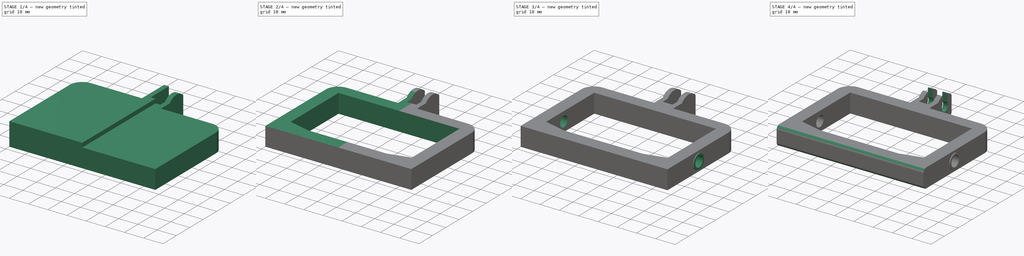
[diagram: build sequence overview — one tinted view per stage of 4, left to right]
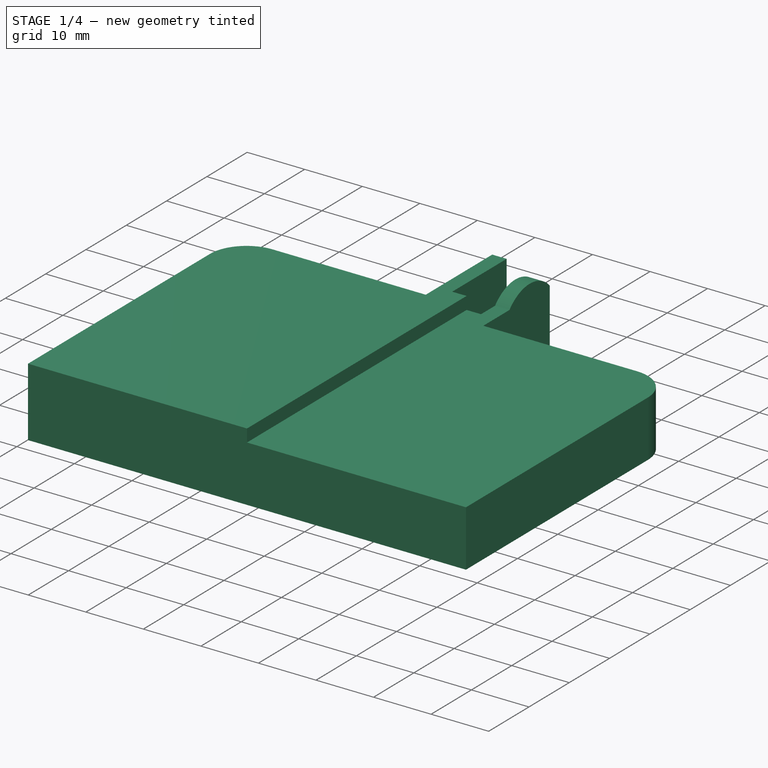
[diagram: stage 1 of 4 — iso view after this stage's code; geometry added in this stage tinted green]
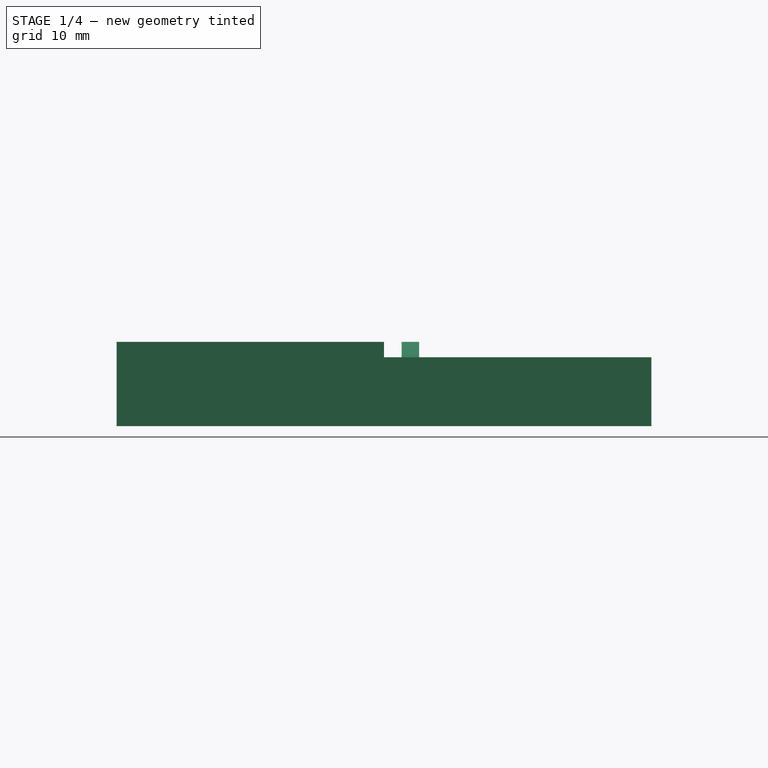
[diagram: stage 1 of 4 — front view after this stage's code; geometry added in this stage tinted green]
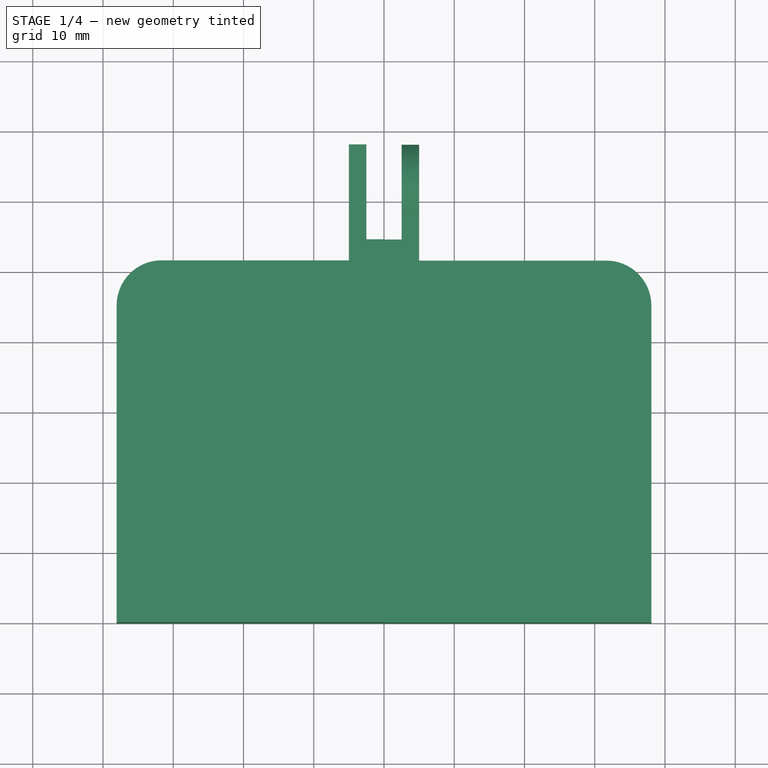
[diagram: stage 1 of 4 — top view after this stage's code; geometry added in this stage tinted green]
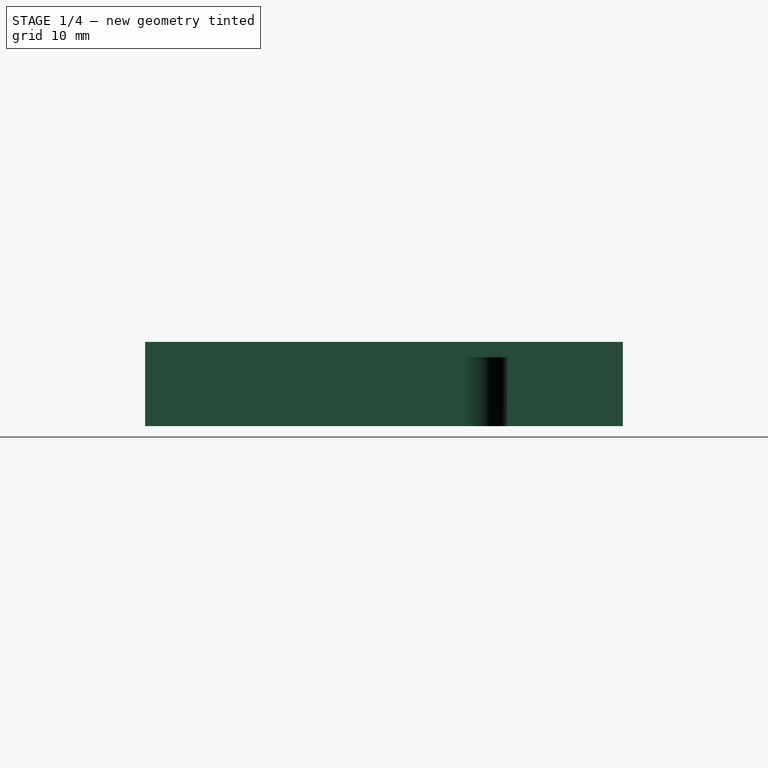
[diagram: stage 1 of 4 — right view after this stage's code; geometry added in this stage tinted green]
FCSTD DOCUMENT  (FreeCAD 0.18R4 (GitTag))
Label: styron
License: All rights reserved
LicenseURL: http://en.wikipedia.org/wiki/All_rights_reserved
objects: Sketcher::SketchObject×8, PartDesign::Pocket×6, PartDesign::Plane×5, PartDesign::Mirrored×4, PartDesign::Pad×2, Spreadsheet::Sheet×1, PartDesign::Body×1
note: 34 computed .brp shape members not serialized (recipe doc carries the construction recipe); baked Part::Feature solids carry a one-line shape summary decoded from their .brp

FEATURE [Spreadsheet::Sheet] Spreadsheet
  cells = A1=TotalWidth; B1(TotalWidth)==76.09999999999999mm; A2=BodyHeight; B2(BodyHeight)==51.5mm; A3=HeadHeight; B3(HeadHeight)==16.5mm; A4=NeckHeight; B4(NeckHeight)==HeadHeight - 10mm; A5=TotalHeight; B5(TotalHeight)==BodyHeight + HeadHeight; A6=InnerHeadHeight; B6(InnerHeadHeight)==13.5mm; A7=HeadWidth; B7(HeadWidth)==10mm; A8=InnerHeadWidth; B8(InnerHeadWidth)==HeadWidth / 2; A9=BodyArcRadius; B9(BodyArcRadius)==6.4mm; A10=TotalDepth; B10(TotalDepth)==12mm; A11=BodyDepth; B11(BodyDepth)==9.800000000000001mm; A12=HoleDiameter; B12(HoleDiameter)==5.5mm; A13=BumpDiameter; B13(BumpDiameter)==7.5mm; A14=BumpDistanceY; B14(BumpDistanceY)==20mm + HoleDiameter / 2; A15=BumpWidth; B15(BumpWidth)==0.5mm; A16=InnerProfileLongWidth; B16(InnerProfileLongWidth)==63.1mm; A17=InnerProfileShortWidth; B17(InnerProfileShortWidth)==40.7mm; A18=InnerProfileLongSideHeight; B18(InnerProfileLongSideHeight)==38.4mm; A19=InnerProfileShortSideHeight; B19(InnerProfileShortSideHeight)==35.6mm; A20=InnerProfileSideWallWidth; B20(InnerProfileSideWallWidth)==6.5mm; A21=InnerProfileTopWallWidth; B21(InnerProfileTopWallWidth)==6.3mm; A22=InnerProfileBottomWallWidth; B22(InnerProfileBottomWallWidth)==6.8mm; A23=CutArcRadius; B23(CutArcRadius)==2mm; A24=ClampRadius; B24(ClampRadius)==2.25mm; A25=ClampDegree; B25(ClampDegree)==260deg; A26=ClampHeight; B26(ClampHeight)==HeadHeight - NeckHeight; A27=ClampDistanceY; B27(ClampDistanceY)==BodyHeight + NeckHeight + ClampHeight / 2; A28=ClampOpeningWidth; B28(ClampOpeningWidth)==3.5mm
FEATURE [Sketcher::SketchObject] Sketch010  label="SketchBase"
  MapMode = 5
  Support = -> [XY_Plane002]
  expr: Constraints[24] = Spreadsheet.BodyHeight
  expr: Constraints[23] = Spreadsheet.BodyArcRadius
  expr: Constraints[19] = Spreadsheet.InnerHeadWidth / 2
  expr: Constraints[17] = Spreadsheet.InnerHeadHeight
  expr: Constraints[14] = Spreadsheet.TotalWidth / 2
  expr: Constraints[16] = Spreadsheet.HeadHeight
  expr: Constraints[18] = Spreadsheet.HeadWidth / 2
  sketch-geometry (9):
    g0: LineSegment StartX=0 StartY=0 StartZ=0 EndX=38.05 EndY=0 EndZ=0
    g1: LineSegment StartX=38.05 StartY=0 StartZ=0 EndX=38.05 EndY=45.1 EndZ=0
    g2: LineSegment StartX=31.65 StartY=51.5 StartZ=0 EndX=5 EndY=51.5 EndZ=0
    g3: LineSegment StartX=5 StartY=51.5 StartZ=0 EndX=5 EndY=68 EndZ=0
    g4: LineSegment StartX=5 StartY=68 StartZ=0 EndX=2.5 EndY=68 EndZ=0
    g5: LineSegment StartX=2.5 StartY=68 StartZ=0 EndX=2.5 EndY=54.5 EndZ=0
    g6: LineSegment StartX=2.5 StartY=54.5 StartZ=0 EndX=0 EndY=54.5 EndZ=0
    g7: LineSegment StartX=0 StartY=54.5 StartZ=0 EndX=0 EndY=0 EndZ=0
    g8: ArcOfCircle CenterX=31.65 CenterY=45.1 CenterZ=0 NormalX=0 NormalY=0 NormalZ=1 AngleXU=0 Radius=6.4 StartAngle=8.4e-15 EndAngle=1.5708
  constraints (25):
    c: Coincident(g0,g1)
    c: Coincident(g2,g3)
    c: Vertical(g3)
    c: Coincident(g3,g4)
    c: Coincident(g4,g5)
    c: Vertical(g5)
    c: Coincident(g5,g6)
    c: Horizontal(g6)
    c: Coincident(g6,g7)
    c: Coincident(g7,g0)
    c: Vertical(g7)
    c: Vertical(g1)
    c: Horizontal(g2)
    c: Horizontal(g0)
    c: DistanceX(g0,g0) = 38.05
    c: Horizontal(g4)
    c: DistanceY(g3,g3) = 16.5
    c: DistanceY(g5,g5) = 13.5
    c: DistanceX(g6,g2) = 5
    c: DistanceX(g6,g5) = 2.5
    c: Coincident(g0,g-1)
    c: Tangent(g2,g8) = -1.5708
    c: Tangent(g1,g8) = -1.5708
    c: Radius(g8) = 6.4
    c: DistanceY(g0,g2) = 51.5
FEATURE [PartDesign::Pad] Pad002  label="PadBase"
  Length = 12
  Length2 = 100
  Profile = -> Sketch010
  Type = 0
  expr: Length = Spreadsheet.TotalDepth
FEATURE [PartDesign::Plane] DatumPlane005  label="DatumPlaneTopCut"
  Length = 24
  MapMode = 5
  Placement = pos=(0,0,0) rot=(0.57735,0.57735,0.57735;2.0944rad)
  ResizeMode = 0
  Support = -> [YZ_Plane002]
  Width = 24
FEATURE [Sketcher::SketchObject] Sketch011  label="SketchHeadCut"
  MapMode = 5
  Placement = pos=(0,0,0) rot=(0.57735,0.57735,0.57735;2.0944rad)
  Support = -> [DatumPlane005]
  expr: Constraints[17] = Spreadsheet.TotalDepth - Spreadsheet.BodyDepth
  expr: Constraints[9] = Spreadsheet.BodyDepth
  expr: Constraints[1] = Spreadsheet.BodyHeight + Spreadsheet.NeckHeight
  expr: Constraints[12] = Spreadsheet.TotalHeight
  sketch-geometry (8):
    g0: LineSegment StartX=0 StartY=9.8 StartZ=0 EndX=58 EndY=9.8 EndZ=0
    g1: LineSegment StartX=0 StartY=9.8 StartZ=0 EndX=0 EndY=12.8 EndZ=0
    g2: LineSegment StartX=0 StartY=12.8 StartZ=0 EndX=68 EndY=12.8 EndZ=0
    g3: LineSegment StartX=68 StartY=12.8 StartZ=0 EndX=68 EndY=9.8 EndZ=0
    g4: ArcOfCircle CenterX=63 CenterY=5.21818 CenterZ=0 NormalX=0 NormalY=0 NormalZ=1 AngleXU=0 Radius=6.78182 StartAngle=0.741783 EndAngle=2.39981
    g5: LineSegment [constr] StartX=58 StartY=9.8 StartZ=0 EndX=58 EndY=12 EndZ=0
    g6: LineSegment [constr] StartX=58 StartY=12 StartZ=0 EndX=68 EndY=12 EndZ=0
    g7: LineSegment [constr] StartX=68 StartY=12 StartZ=0 EndX=68 EndY=9.8 EndZ=0
  constraints (24):
    c: Horizontal(g0)
    c: DistanceX(g0,g0) = 58
    c: Vertical(g1)
    c: Coincident(g1,g2)
    c: Horizontal(g2)
    c: Coincident(g2,g3)
    c: Vertical(g3)
    c: Coincident(g0,g1)
    c: Vertical(g0,g-1)
    c: DistanceY(g-1,g0) = 9.8
    c: DistanceY(g1,g1) = 3
    c: Equal(g3,g1)
    c: DistanceX(g2,g2) = 68
    c: Coincident(g4,g0)
    c: Coincident(g4,g3)
    c: Coincident(g0,g5)
    c: Vertical(g5)
    c: DistanceY(g5,g5) = 2.2
    c: Coincident(g6,g5)
    c: Horizontal(g6)
    c: Coincident(g7,g6)
    c: Coincident(g7,g3)
    c: Vertical(g7)
    c: Tangent(g4,g6)
FEATURE [PartDesign::Plane] DatumPlane006  label="DatumPlaneInnerProfile"
  AttachmentOffset = pos=(0,0,9.8) rot=(0,0,1;0rad)
  Length = 24
  MapMode = 5
  Placement = pos=(0,0,9.8) rot=(0,0,1;0rad)
  ResizeMode = 0
  Support = -> [XY_Plane002]
  Width = 24
  expr: AttachmentOffset.Base.z = Spreadsheet.BodyDepth
FEATURE [Sketcher::SketchObject] Sketch012  label="SketchInnerProfile"
  MapMode = 5
  Placement = pos=(0,0,9.8) rot=(0,0,1;0rad)
  Support = -> [DatumPlane006]
  expr: Constraints[13] = Spreadsheet.InnerProfileShortWidth / 2
  expr: Constraints[12] = Spreadsheet.InnerProfileLongWidth / 2
  expr: Constraints[11] = Spreadsheet.InnerProfileBottomWallWidth
  expr: Constraints[10] = Spreadsheet.InnerProfileShortSideHeight
  expr: Constraints[9] = Spreadsheet.InnerProfileLongSideHeight
  sketch-geometry (5):
    g0: LineSegment StartX=0 StartY=6.8 StartZ=0 EndX=20.35 EndY=6.8 EndZ=0
    g1: LineSegment StartX=20.35 StartY=6.8 StartZ=0 EndX=31.55 EndY=9.6 EndZ=0
    g2: LineSegment StartX=31.55 StartY=9.6 StartZ=0 EndX=31.55 EndY=45.2 EndZ=0
    g3: LineSegment StartX=31.55 StartY=45.2 StartZ=0 EndX=0 EndY=45.2 EndZ=0
    g4: LineSegment StartX=0 StartY=45.2 StartZ=0 EndX=0 EndY=6.8 EndZ=0
  constraints (15):
    c: Horizontal(g0)
    c: Coincident(g0,g1)
    c: Coincident(g1,g2)
    c: Vertical(g2)
    c: Coincident(g2,g3)
    c: Horizontal(g3)
    c: Coincident(g3,g4)
    c: Coincident(g4,g0)
    c: Vertical(g4)
    c: DistanceY(g4,g4) = 38.4
    c: DistanceY(g2,g2) = 35.6
    c: DistanceY(g-1,g0) = 6.8
    c: DistanceX(g3,g2) = 31.55
    c: DistanceX(g0,g0) = 20.35
    c: Vertical(g0,g-1)
FEATURE [PartDesign::Plane] DatumPlane007  label="DatumPlaneBump"
  AttachmentOffset = pos=(0,0,38.05) rot=(0,0,1;0rad)
  Length = 24
  MapMode = 5
  Placement = pos=(38.05,-8.4e-15,8.4e-15) rot=(0.57735,0.57735,0.57735;2.0944rad)
  ResizeMode = 0
  Support = -> [YZ_Plane002]
  Width = 24
  expr: AttachmentOffset.Base.z = Spreadsheet.TotalWidth / 2
FEATURE [Sketcher::SketchObject] Sketch013  label="SketchBump"
  MapMode = 5
  Placement = pos=(38.05,-8.4e-15,8.4e-15) rot=(0.57735,0.57735,0.57735;2.0944rad)
  Support = -> [DatumPlane007]
  expr: Constraints[2] = Spreadsheet.BumpDiameter
  expr: Constraints[1] = Spreadsheet.BodyDepth / 2
  expr: Constraints[0] = Spreadsheet.BumpDistanceY
  sketch-geometry (1):
    g0: Circle CenterX=22.75 CenterY=4.9 CenterZ=0 NormalX=0 NormalY=0 NormalZ=1 AngleXU=0 Radius=3.75
  constraints (3):
    c: DistanceX(g-1,g0) = 22.75
    c: DistanceY(g-1,g0) = 4.9
    c: Diameter(g0) = 7.5
FEATURE [PartDesign::Plane] DatumPlane008  label="DatumPlaneHole"
  AttachmentOffset = pos=(0,0,38.55) rot=(0,0,1;0rad)
  Length = 24
  MapMode = 5
  Placement = pos=(38.55,-8.6e-15,8.6e-15) rot=(0.57735,0.57735,0.57735;2.0944rad)
  ResizeMode = 0
  Support = -> [YZ_Plane002]
  Width = 24
  expr: AttachmentOffset.Base.z = Spreadsheet.TotalWidth / 2 + Spreadsheet.BumpWidth
FEATURE [Sketcher::SketchObject] Sketch014  label="SketchHole"
  MapMode = 5
  Placement = pos=(38.55,-8.6e-15,8.6e-15) rot=(0.57735,0.57735,0.57735;2.0944rad)
  Support = -> [DatumPlane008]
  expr: Constraints[2] = Spreadsheet.HoleDiameter
  expr: Constraints[1] = Spreadsheet.BumpDistanceY
  expr: Constraints[0] = Spreadsheet.BodyDepth / 2
  sketch-geometry (1):
    g0: Circle CenterX=22.75 CenterY=4.9 CenterZ=0 NormalX=0 NormalY=0 NormalZ=1 AngleXU=0 Radius=2.75
  constraints (3):
    c: DistanceY(g-1,g0) = 4.9
    c: DistanceX(g-1,g0) = 22.75
    c: Diameter(g0) = 5.5
FEATURE [Sketcher::SketchObject] Sketch015  label="SketchArcCut1"
  MapMode = 5
  Placement = pos=(38.05,-8.4e-15,8.4e-15) rot=(0.57735,0.57735,0.57735;2.0944rad)
  Support = -> [DatumPlane007]
  expr: Constraints[23] = Spreadsheet.BodyDepth
  expr: Constraints[20] = Spreadsheet.CutArcRadius
  expr: Constraints[13] = Spreadsheet.CutArcRadius
  sketch-geometry (8):
    g0: LineSegment StartX=2 StartY=-1 StartZ=0 EndX=-1 EndY=-1 EndZ=0
    g1: LineSegment StartX=-1 StartY=-1 StartZ=0 EndX=-1 EndY=10.8 EndZ=0
    g2: LineSegment StartX=-1 StartY=10.8 StartZ=0 EndX=2 EndY=10.8 EndZ=0
    g3: LineSegment StartX=2 StartY=10.8 StartZ=0 EndX=2 EndY=9.8 EndZ=0
    g4: LineSegment StartX=0 StartY=7.8 StartZ=0 EndX=0 EndY=2 EndZ=0
    g5: LineSegment StartX=2 StartY=0 StartZ=0 EndX=2 EndY=-1 EndZ=0
    g6: ArcOfCircle CenterX=2 CenterY=2 CenterZ=0 NormalX=0 NormalY=0 NormalZ=1 AngleXU=0 Radius=2 StartAngle=3.14159 EndAngle=4.71239
    g7: ArcOfCircle CenterX=2 CenterY=7.8 CenterZ=0 NormalX=0 NormalY=0 NormalZ=1 AngleXU=0 Radius=2 StartAngle=1.5708 EndAngle=3.14159
  constraints (24):
    c: Horizontal(g0)
    c: Coincident(g0,g1)
    c: Vertical(g1)
    c: Coincident(g1,g2)
    c: Horizontal(g2)
    c: Coincident(g2,g3)
    c: Vertical(g3)
    c: Vertical(g4)
    c: Coincident(g5,g0)
    c: Vertical(g5)
    c: Tangent(g4,g6) = -1.5708
    c: Tangent(g4,g7) = -1.5708
    c: Equal(g7,g6)
    c: Radius(g7) = 2
    c: Coincident(g3,g7)
    c: Coincident(g5,g6)
    c: Horizontal(g5,g-1)
    c: Vertical(g4,g-1)
    c: DistanceY(g0,g-1) = 1
    c: DistanceX(g0,g-1) = 1
    c: DistanceX(g-1,g5) = 2
    c: Equal(g5,g3)
    c: Equal(g2,g0)
    c: DistanceY(g5,g3) = 9.8
FEATURE [PartDesign::Plane] DatumPlane009  label="DatumPlaneArcCut1"
  AttachmentOffset = pos=(0,0,5) rot=(0,0,1;0rad)
  Length = 24
  MapMode = 5
  Placement = pos=(5,-1.1e-15,1.1e-15) rot=(0.57735,0.57735,0.57735;2.0944rad)
  ResizeMode = 0
  Support = -> [YZ_Plane002]
  Width = 24
  expr: AttachmentOffset.Base.z = Spreadsheet.HeadWidth / 2
FEATURE [Sketcher::SketchObject] Sketch016  label="SketchArcCut2"
  MapMode = 5
  Placement = pos=(5,-1.1e-15,1.1e-15) rot=(0.57735,0.57735,0.57735;2.0944rad)
  Support = -> [DatumPlane009]
  expr: Constraints[9] = Spreadsheet.TotalHeight
  expr: Constraints[7] = Spreadsheet.CutArcRadius
  expr: Constraints[3] = Spreadsheet.CutArcRadius
  sketch-geometry (3):
    g0: ArcOfCircle CenterX=66 CenterY=2 CenterZ=0 NormalX=0 NormalY=0 NormalZ=1 AngleXU=0 Radius=2 StartAngle=4.71239 EndAngle=6.28319
    g1: LineSegment StartX=66 StartY=0 StartZ=0 EndX=68 EndY=0 EndZ=0
    g2: LineSegment StartX=68 StartY=0 StartZ=0 EndX=68 EndY=2 EndZ=0
  constraints (10):
    c: Coincident(g1,g2)
    c: Vertical(g2)
    c: Horizontal(g1)
    c: Radius(g0) = 2
    c: Equal(g2,g1)
    c: Coincident(g0,g1)
    c: Coincident(g0,g2)
    c: DistanceY(g2,g2) = 2
    c: Horizontal(g1,g-1)
    c: DistanceX(g-1,g1) = 68
FEATURE [PartDesign::Mirrored] Mirrored001  label="MirroredBase"
  BaseFeature = -> Pad002
  MirrorPlane = -> Sketch010 [V_Axis]
  Originals = -> [Pad002]
FEATURE [PartDesign::Pocket] Pocket007  label="PocketTopCut"
  BaseFeature = -> Mirrored001
  Length = 5
  Length2 = 100
  Profile = -> Sketch011
  Reversed = true
  Type = 1
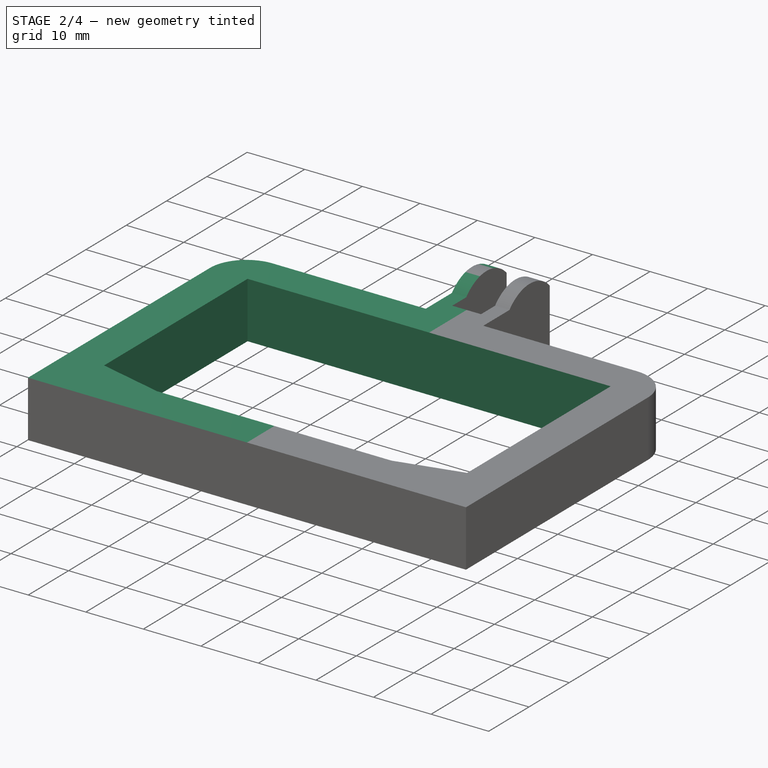
[diagram: stage 2 of 4 — iso view after this stage's code; geometry added in this stage tinted green]
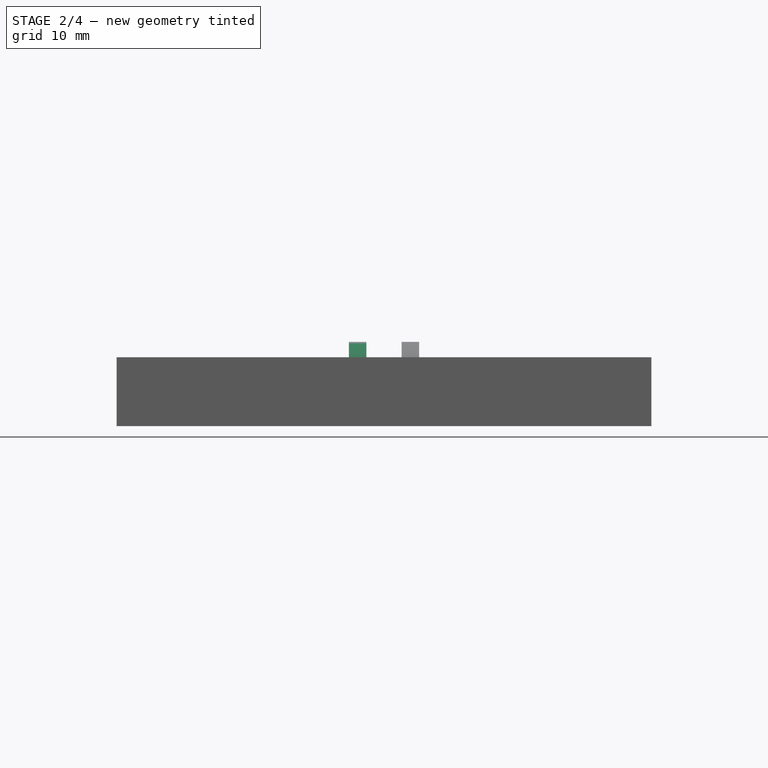
[diagram: stage 2 of 4 — front view after this stage's code; geometry added in this stage tinted green]
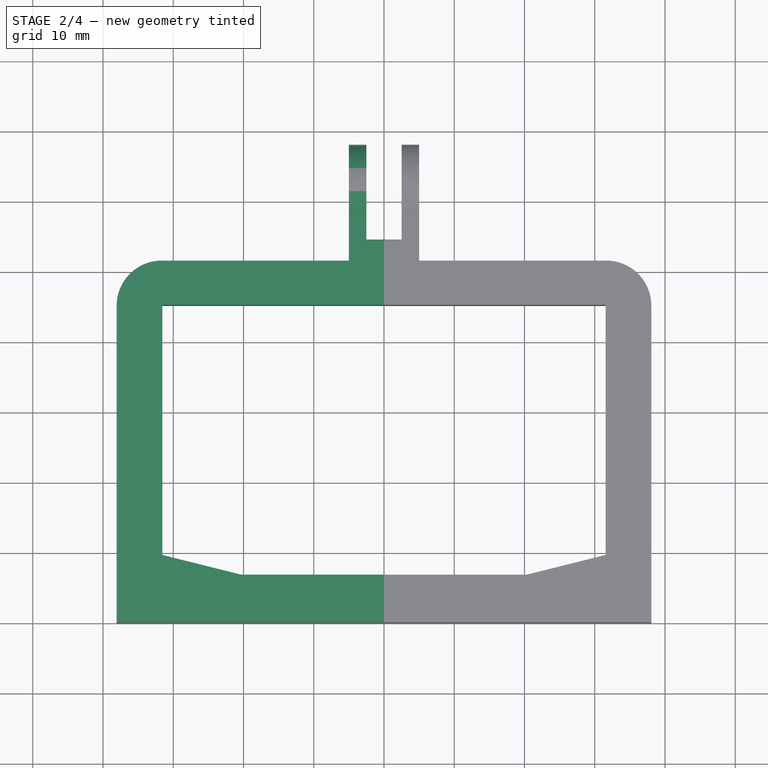
[diagram: stage 2 of 4 — top view after this stage's code; geometry added in this stage tinted green]
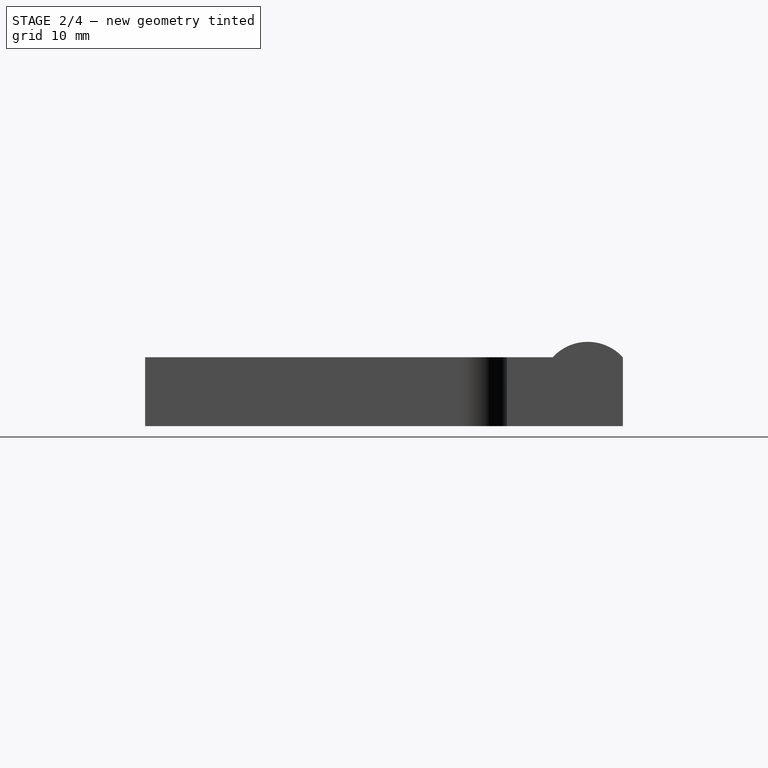
[diagram: stage 2 of 4 — right view after this stage's code; geometry added in this stage tinted green]
FEATURE [PartDesign::Mirrored] Mirrored002  label="MirroredTopCut"
  BaseFeature = -> Pocket007
  MirrorPlane = -> YZ_Plane002
  Originals = -> [Pocket007]
FEATURE [PartDesign::Pocket] Pocket008  label="PocketInnerProfile"
  BaseFeature = -> Mirrored002
  Length = 5
  Length2 = 100
  Profile = -> Sketch012
  Type = 1
FEATURE [PartDesign::Mirrored] Mirrored003  label="MirroredInnerProfile"
  BaseFeature = -> Pocket008
  MirrorPlane = -> Sketch012 [V_Axis]
  Originals = -> [Pocket008]
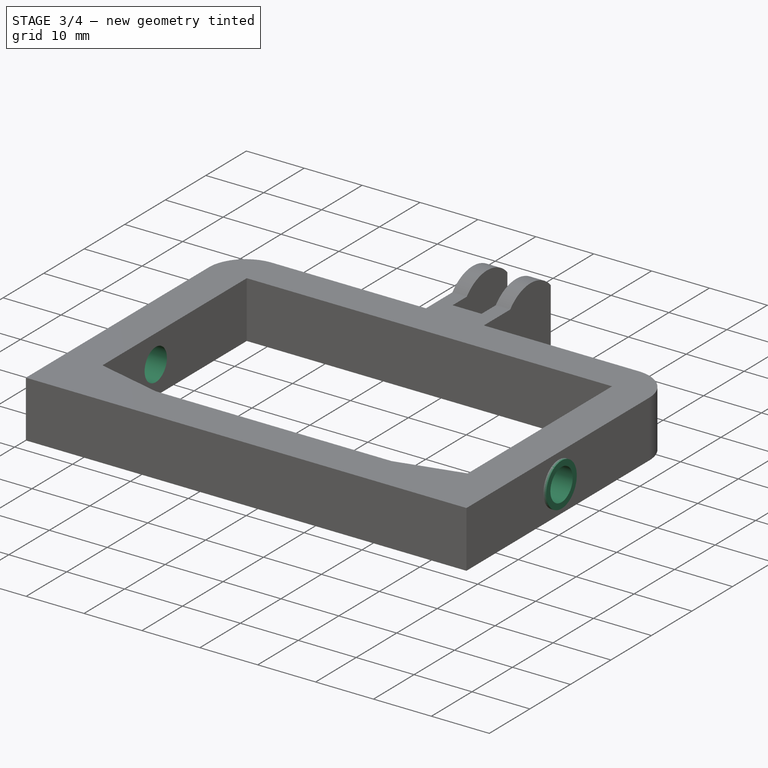
[diagram: stage 3 of 4 — iso view after this stage's code; geometry added in this stage tinted green]
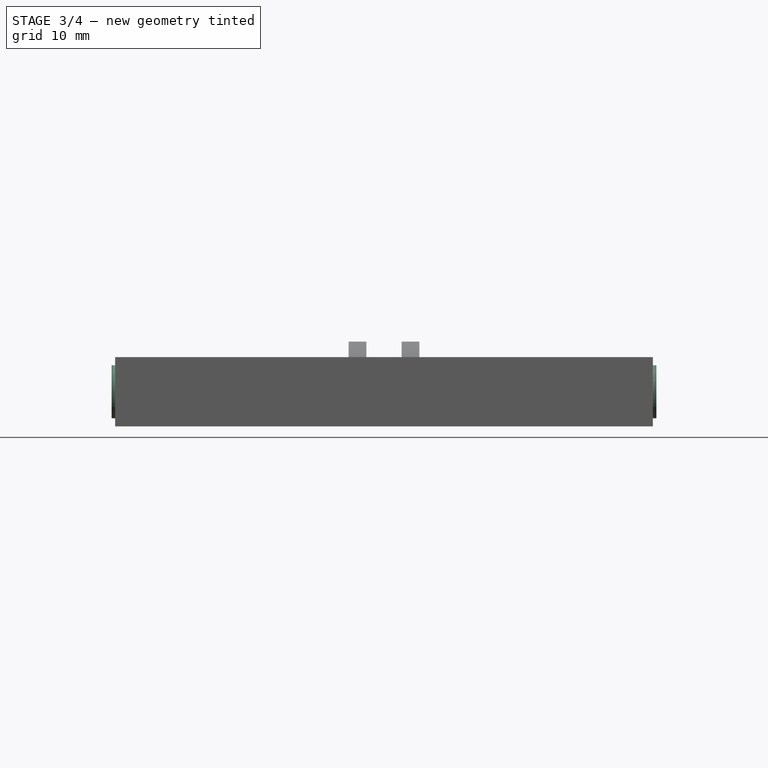
[diagram: stage 3 of 4 — front view after this stage's code; geometry added in this stage tinted green]
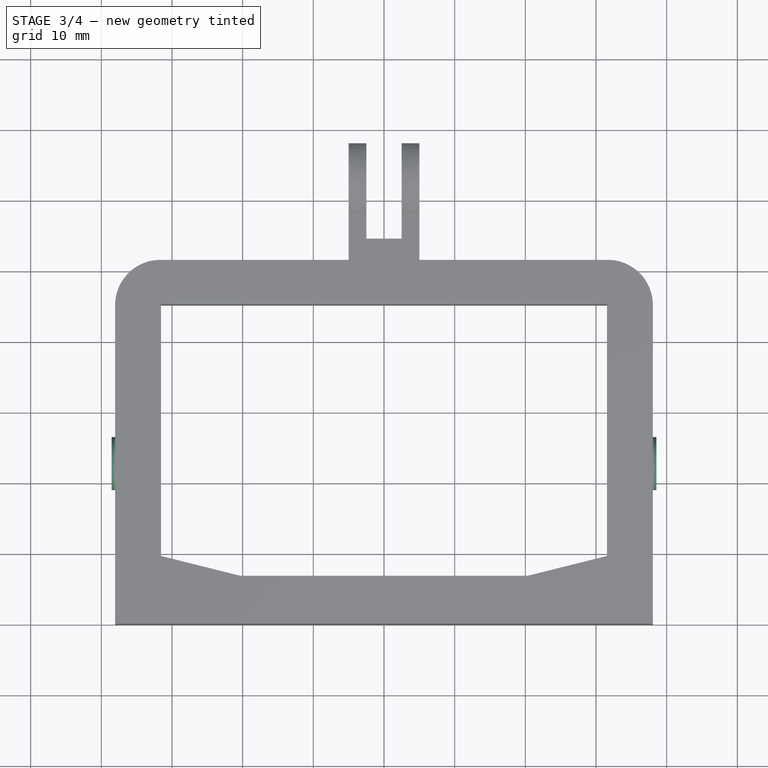
[diagram: stage 3 of 4 — top view after this stage's code; geometry added in this stage tinted green]
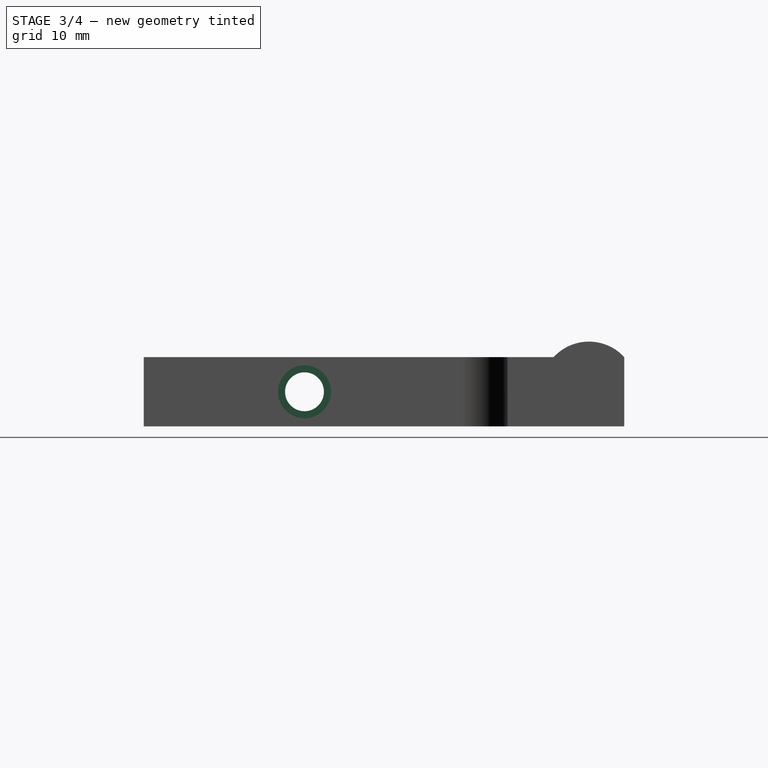
[diagram: stage 3 of 4 — right view after this stage's code; geometry added in this stage tinted green]
FEATURE [PartDesign::Pad] Pad003  label="PadBump"
  BaseFeature = -> Mirrored003
  Length = 0.5
  Length2 = 100
  Profile = -> Sketch013
  Type = 0
  expr: Length = Spreadsheet.BumpWidth
FEATURE [PartDesign::Mirrored] Mirrored004  label="MirroredBump"
  BaseFeature = -> Pad003
  MirrorPlane = -> YZ_Plane002
  Originals = -> [Pad003]
FEATURE [PartDesign::Pocket] Pocket009  label="PocketHole"
  BaseFeature = -> Mirrored004
  Length = 5
  Length2 = 100
  Profile = -> Sketch014
  Type = 1
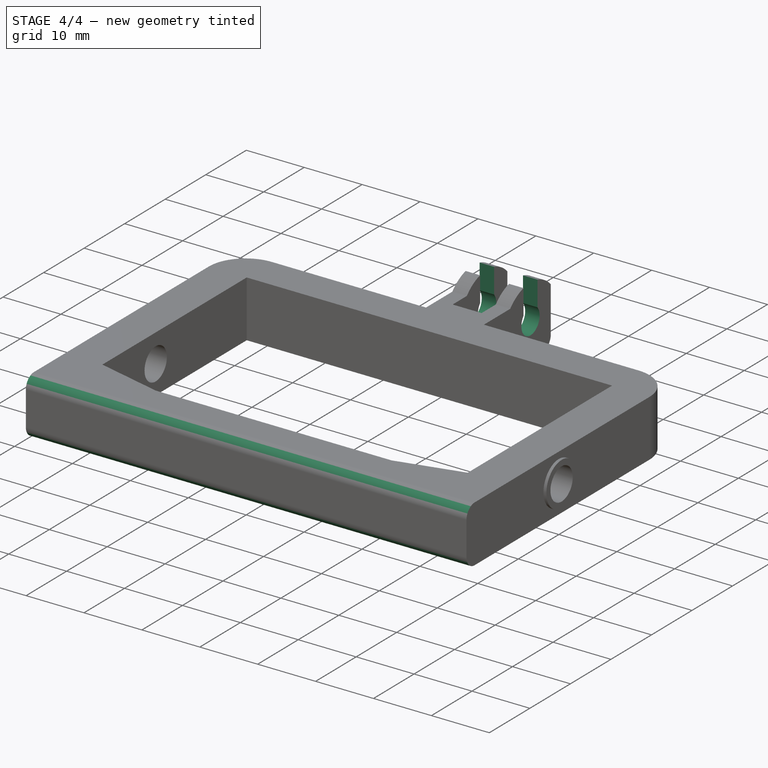
[diagram: stage 4 of 4 — iso view after this stage's code; geometry added in this stage tinted green]
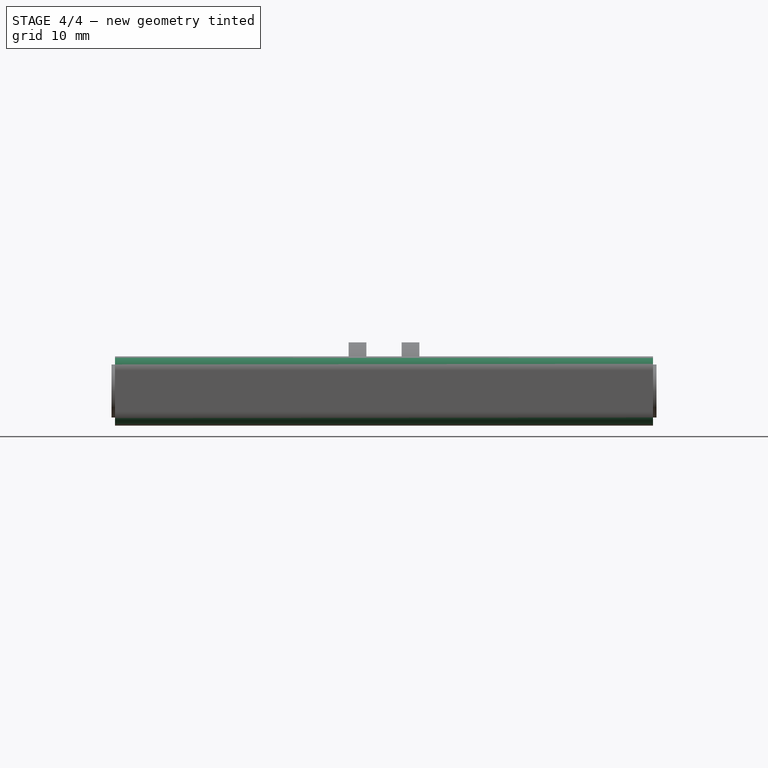
[diagram: stage 4 of 4 — front view after this stage's code; geometry added in this stage tinted green]
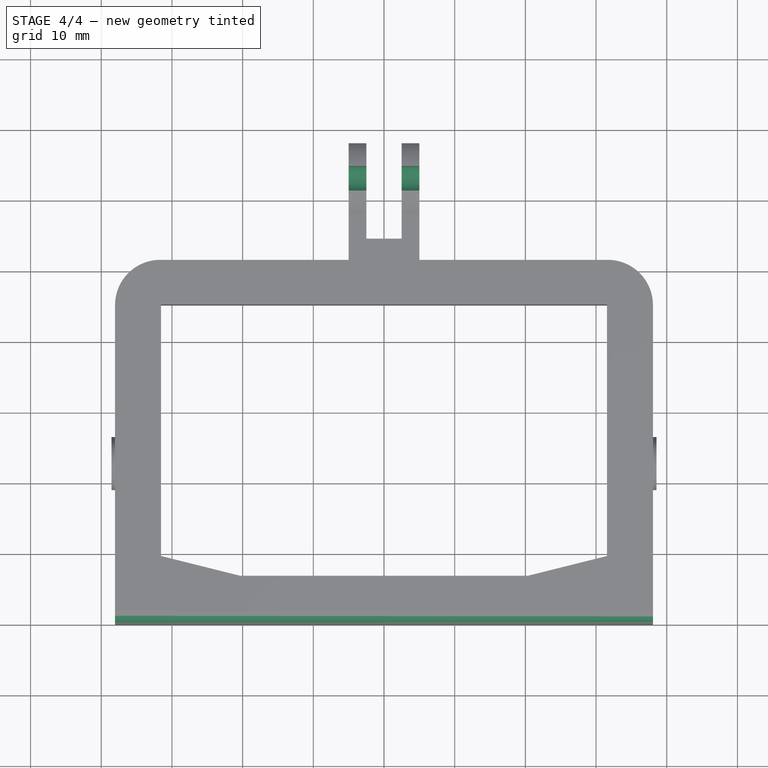
[diagram: stage 4 of 4 — top view after this stage's code; geometry added in this stage tinted green]
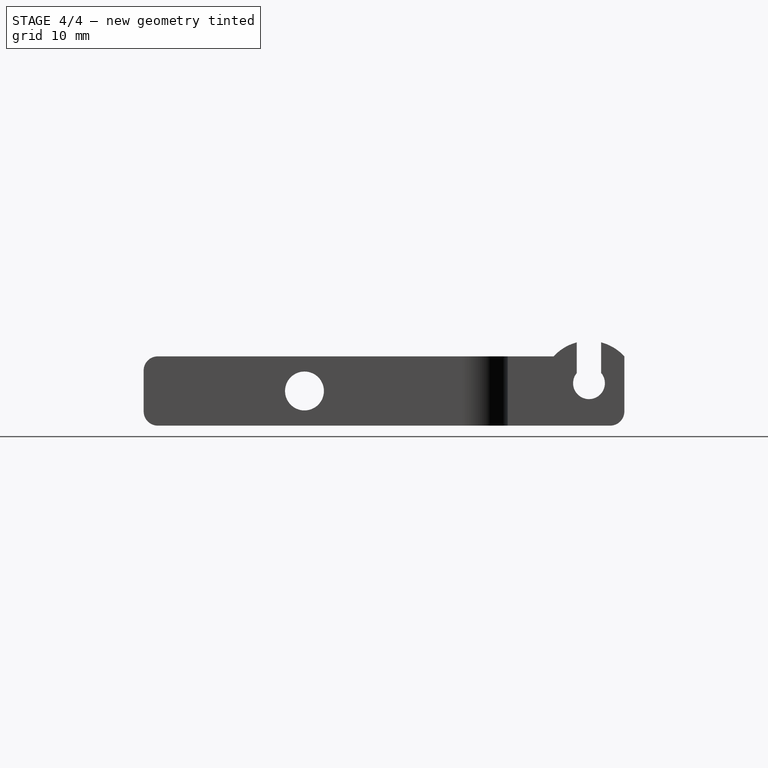
[diagram: stage 4 of 4 — right view after this stage's code; geometry added in this stage tinted green]
FEATURE [PartDesign::Pocket] Pocket010  label="PocketArcCut1"
  BaseFeature = -> Pocket009
  Length = 5
  Length2 = 100
  Profile = -> Sketch015
  Type = 1
FEATURE [PartDesign::Pocket] Pocket011  label="PocketArcCut2"
  BaseFeature = -> Pocket010
  Length = 5
  Length2 = 100
  Profile = -> Sketch016
  Type = 1
FEATURE [Sketcher::SketchObject] Sketch017  label="SketchClampCut"
  ExternalGeometry = -> [Pocket011]
  MapMode = 5
  Placement = pos=(5,-1.1e-15,1.1e-15) rot=(0.57735,0.57735,0.57735;2.0944rad)
  Support = -> [DatumPlane009]
  expr: Constraints[3] = Spreadsheet.ClampRadius
  expr: Constraints[2] = Spreadsheet.ClampDistanceY
  expr: Constraints[1] = Spreadsheet.TotalDepth / 2
  expr: Constraints[0] = Spreadsheet.ClampDegree
  sketch-geometry (4):
    g0: ArcOfCircle CenterX=63 CenterY=6 CenterZ=0 NormalX=0 NormalY=0 NormalZ=1 AngleXU=0 Radius=2.25 StartAngle=2.44346 EndAngle=6.98132
    g1: LineSegment StartX=64.7236 StartY=7.44627 StartZ=0 EndX=64.7236 EndY=12.4463 EndZ=0
    g2: LineSegment StartX=61.2764 StartY=7.44627 StartZ=0 EndX=61.2764 EndY=12.4463 EndZ=0
    g3: LineSegment StartX=61.2764 StartY=12.4463 StartZ=0 EndX=64.7236 EndY=12.4463 EndZ=0
  constraints (14):
    c: Angle(g0) = 4.53786
    c: DistanceY(g-1,g0) = 6
    c: DistanceX(g-1,g0) = 63
    c: Radius(g0) = 2.25
    c: Coincident(g1,g0)
    c: Coincident(g2,g0)
    c: Coincident(g3,g2)
    c: Coincident(g3,g1)
    c: Horizontal(g3)
    c: Vertical(g1)
    c: Vertical(g2)
    c: Horizontal(g0,g0)
    c: DistanceX(g2,g1) = 3.4472
    c: DistanceY(g1,g1) = 5
FEATURE [PartDesign::Pocket] Pocket012  label="PocketClampCut"
  BaseFeature = -> Pocket011
  Length = 5
  Length2 = 100
  Profile = -> Sketch017
  Type = 1
FEATURE [PartDesign::Body] Body001  label="Body"
  Group = -> [Pad002,Mirrored001,Sketch010,DatumPlane005,Sketch011,Pocket007,Mirrored002,DatumPlane006,Sketch012,Pocket008,Mirrored003,DatumPlane007,Sketch013,Pad003,Mirrored004,DatumPlane008,Sketch014,Pocket009,Sketch015,Pocket010,DatumPlane009,Sketch016,Pocket011,Sketch017,Pocket012]
  Origin = -> Origin002
  Tip = -> Pocket012
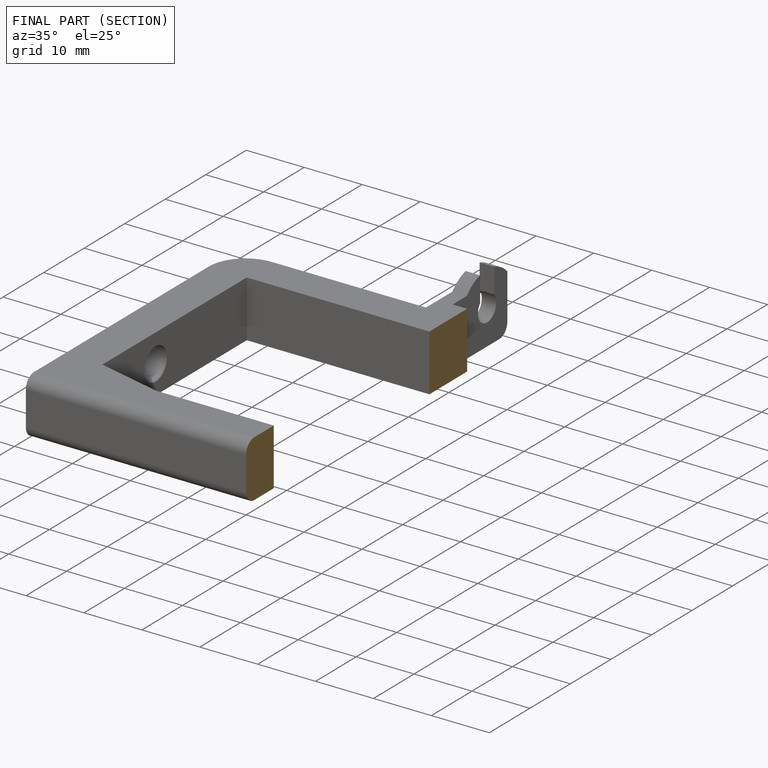
[diagram: finished part — half-section view (interior)]
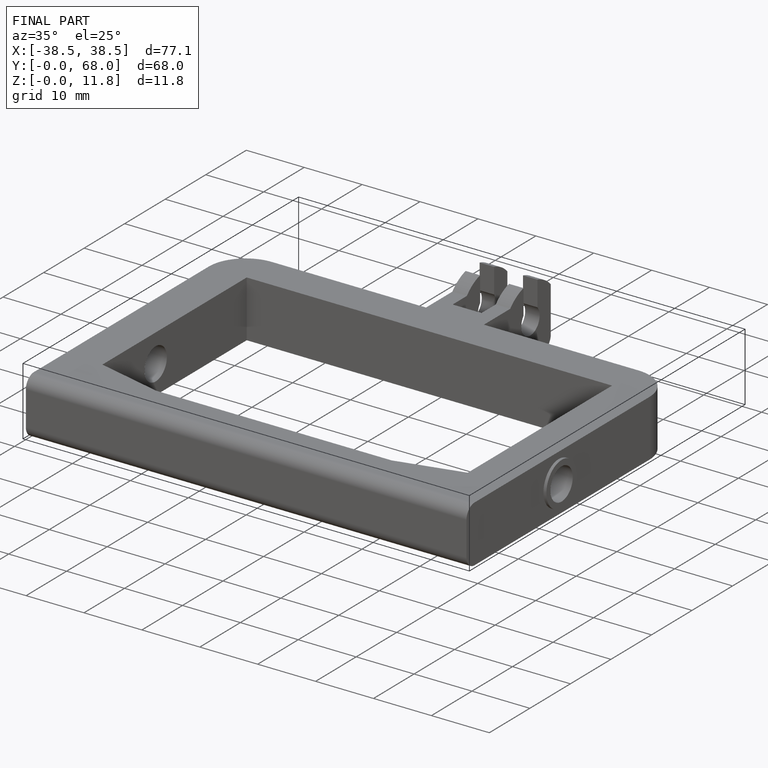
[diagram: finished part — iso view with bounding-box wireframe]
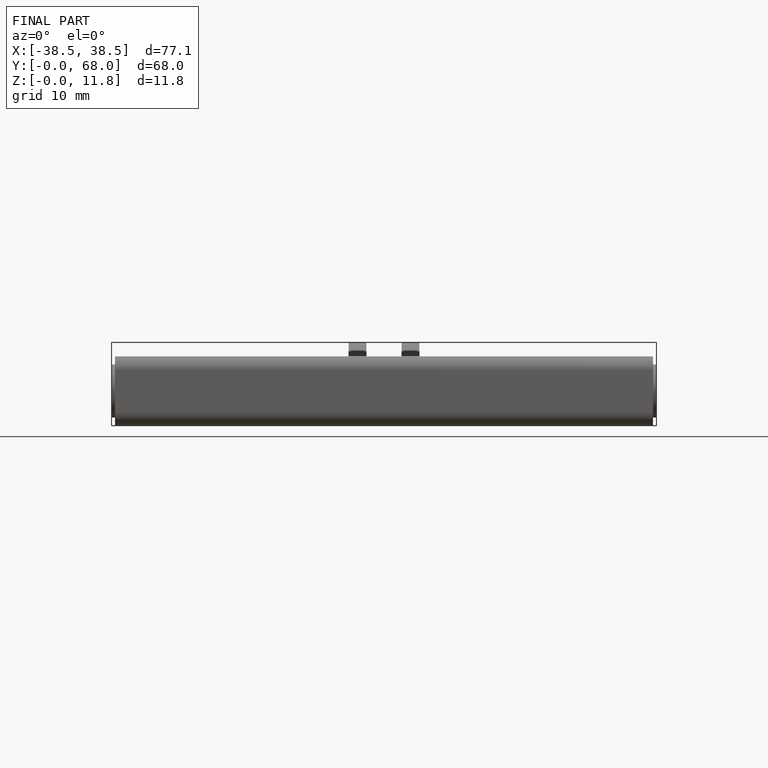
[diagram: finished part — front view with bounding-box wireframe]
